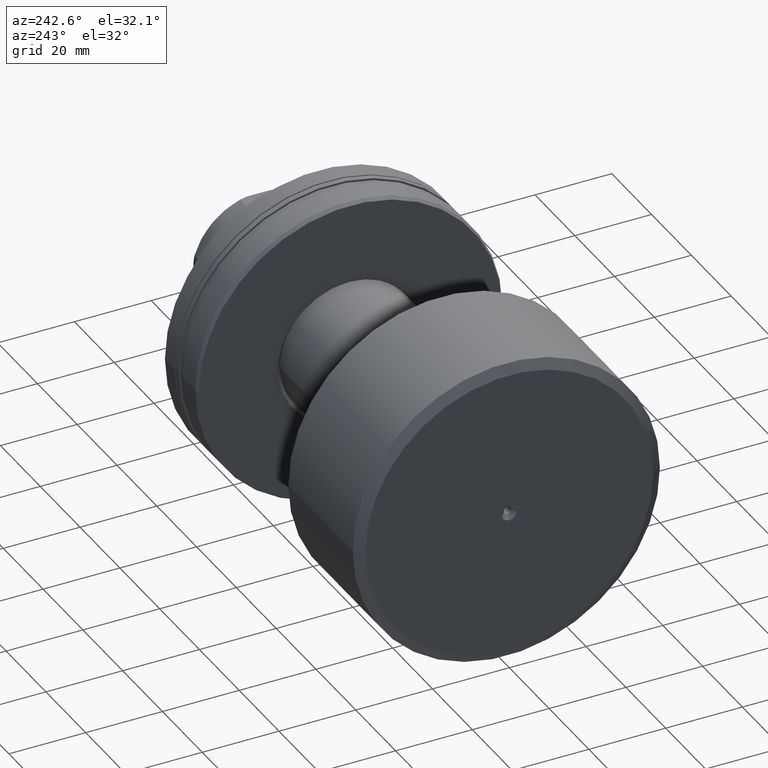
[diagram: clean part render]
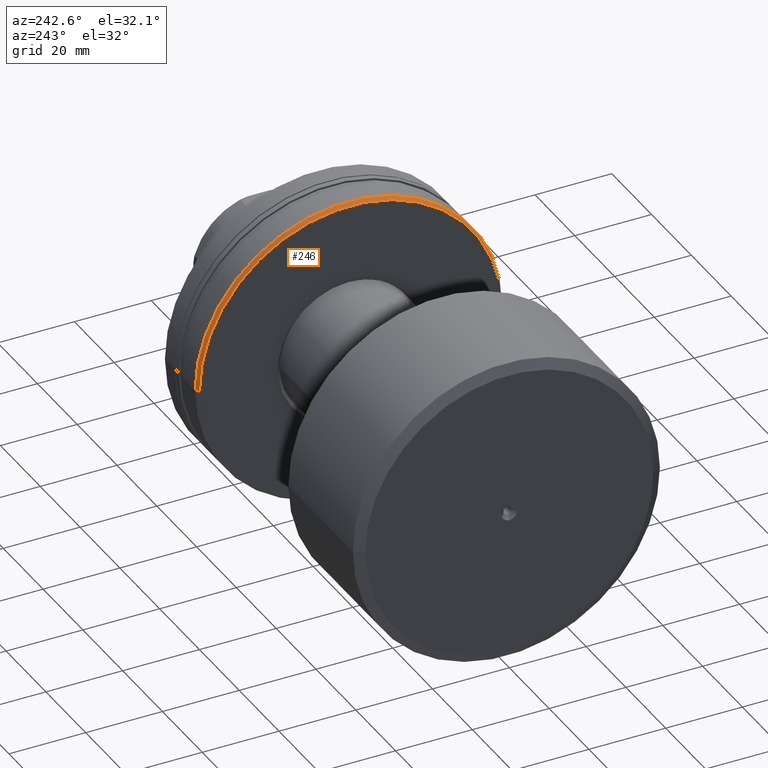
[diagram: same view with one face highlighted and labeled with its STEP entity id]
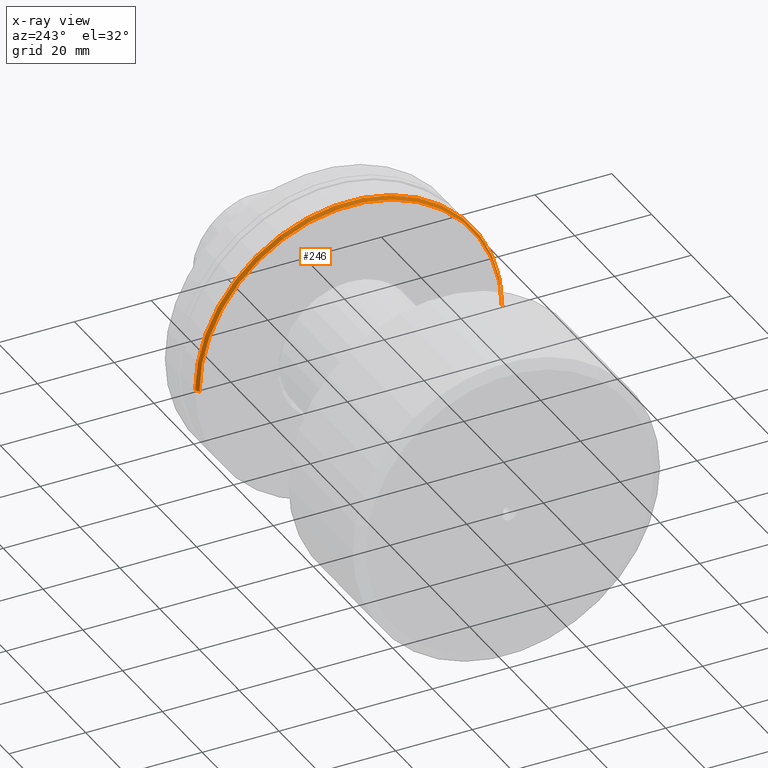
[diagram: x-ray of the same camera — body ghosted, the highlighted face saturated]
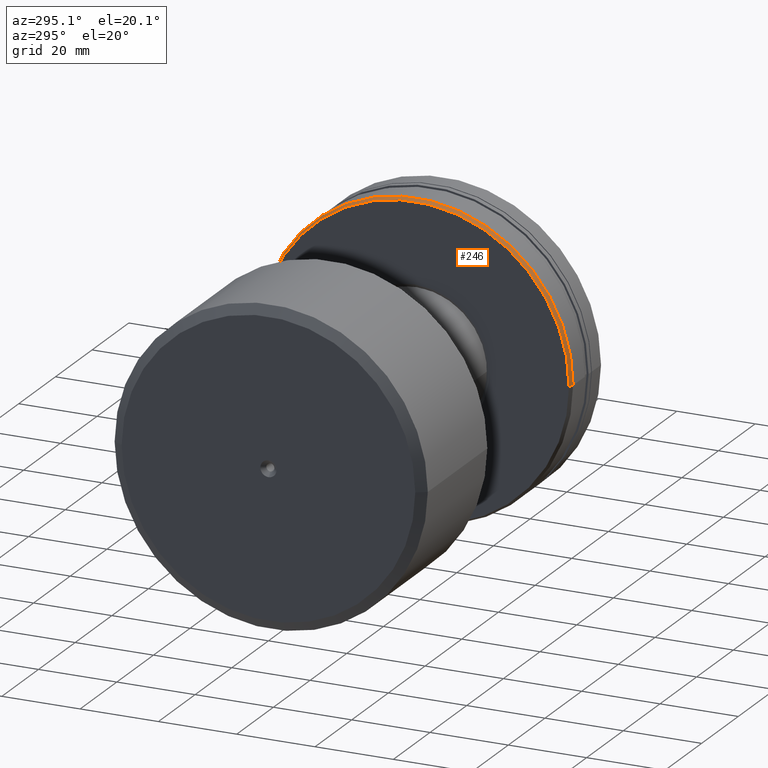
[diagram: same view with one face highlighted and labeled with its STEP entity id]
A machine part, auxiliary view. The second image highlights one B-rep face of the part: STEP entity #246.
The next image is the same camera in x-ray: the body ghosted, the highlighted face saturated — about 0% of this face is hidden behind the body in this view.
A second angle (auxiliary view) of the same face is appended — the face is thin or edge-on in the first view.
In plain terms, the highlighted conical surface has half-angle 30 deg.
Its self-contained STEP definition (entity closure, byte-faithful):
#90 = DIRECTION ( 'NONE',  ( 1.000000000000000000, 3.738146982434194072E-16, -0.000000000000000000 ) ) ;
#121 = EDGE_LOOP ( 'NONE', ( #1971, #351, #2245, #1054 ) ) ;
#211 = AXIS2_PLACEMENT_3D ( 'NONE', #590, #90, #638 ) ;
#246 = ADVANCED_FACE ( 'NONE', ( #2271 ), #1119, .T. ) ;
#344 = DIRECTION ( 'NONE',  ( 0.8660254037844342667, 0.5000000000000074385, 0.000000000000000000 ) ) ;
#351 = ORIENTED_EDGE ( 'NONE', *, *, #852, .T. ) ;
#539 = LINE ( 'NONE', #1459, #913 ) ;
#569 = VERTEX_POINT ( 'NONE', #1698 ) ;
#579 = CARTESIAN_POINT ( 'NONE',  ( -40.19999999999999574, -39.42264973081048396, 4.863234688631922596E-15 ) ) ;
#590 = CARTESIAN_POINT ( 'NONE',  ( -40.20000000000000995, -3.708233295962654957E-15, 0.000000000000000000 ) ) ;
#612 = EDGE_CURVE ( 'NONE', #569, #2053, #698, .T. ) ;
#638 = DIRECTION ( 'NONE',  ( -3.520257492222390077E-16, 1.000000000000000000, 0.000000000000000000 ) ) ;
#681 = DIRECTION ( 'NONE',  ( -3.520257492222390077E-16, 1.000000000000000000, 0.000000000000000000 ) ) ;
#698 = CIRCLE ( 'NONE', #211, 39.42264973081047685 ) ;
#703 = DIRECTION ( 'NONE',  ( 1.000000000000000000, 3.738146982434194072E-16, -0.000000000000000000 ) ) ;
#852 = EDGE_CURVE ( 'NONE', #2053, #1538, #1055, .T. ) ;
#879 = DIRECTION ( 'NONE',  ( -3.469446951953613696E-16, 1.000000000000000000, 0.000000000000000000 ) ) ;
#913 = VECTOR ( 'NONE', #344, 1000.000000000000227 ) ;
#998 = VECTOR ( 'NONE', #1618, 1000.000000000000000 ) ;
#1009 = CARTESIAN_POINT ( 'NONE',  ( -39.20000000000019469, -3.334418597719306597E-15, 0.000000000000000000 ) ) ;
#1042 = AXIS2_PLACEMENT_3D ( 'NONE', #1545, #1730, #681 ) ;
#1054 = ORIENTED_EDGE ( 'NONE', *, *, #2278, .F. ) ;
#1055 = LINE ( 'NONE', #1946, #998 ) ;
#1119 = CONICAL_SURFACE ( 'NONE', #1042, 39.42264973081047685, 0.5235987755983071423 ) ;
#1372 = AXIS2_PLACEMENT_3D ( 'NONE', #1009, #703, #879 ) ;
#1450 = CARTESIAN_POINT ( 'NONE',  ( -39.20000000000020890, 40.00000000000000000, 0.000000000000000000 ) ) ;
#1459 = CARTESIAN_POINT ( 'NONE',  ( -40.20000000000001705, 39.42264973081046975, 0.000000000000000000 ) ) ;
#1538 = VERTEX_POINT ( 'NONE', #1840 ) ;
#1545 = CARTESIAN_POINT ( 'NONE',  ( -40.20000000000000995, -3.708233295962654957E-15, 0.000000000000000000 ) ) ;
#1618 = DIRECTION ( 'NONE',  ( 0.8660254037844347108, -0.5000000000000067724, 6.123233995736853550E-17 ) ) ;
#1698 = CARTESIAN_POINT ( 'NONE',  ( -40.20000000000001705, 39.42264973081046975, 0.000000000000000000 ) ) ;
#1730 = DIRECTION ( 'NONE',  ( 1.000000000000000000, 3.738146982434194072E-16, -0.000000000000000000 ) ) ;
#1771 = CIRCLE ( 'NONE', #1372, 40.00000000000000711 ) ;
#1840 = CARTESIAN_POINT ( 'NONE',  ( -39.20000000000018048, -40.00000000000001421, 4.898587196589413815E-15 ) ) ;
#1879 = VERTEX_POINT ( 'NONE', #1450 ) ;
#1946 = CARTESIAN_POINT ( 'NONE',  ( -40.19999999999999574, -39.42264973081048396, 4.827882180674431377E-15 ) ) ;
#1971 = ORIENTED_EDGE ( 'NONE', *, *, #612, .T. ) ;
#2053 = VERTEX_POINT ( 'NONE', #579 ) ;
#2212 = EDGE_CURVE ( 'NONE', #1879, #1538, #1771, .T. ) ;
#2245 = ORIENTED_EDGE ( 'NONE', *, *, #2212, .F. ) ;
#2271 = FACE_OUTER_BOUND ( 'NONE', #121, .T. ) ;
#2278 = EDGE_CURVE ( 'NONE', #569, #1879, #539, .T. ) ;